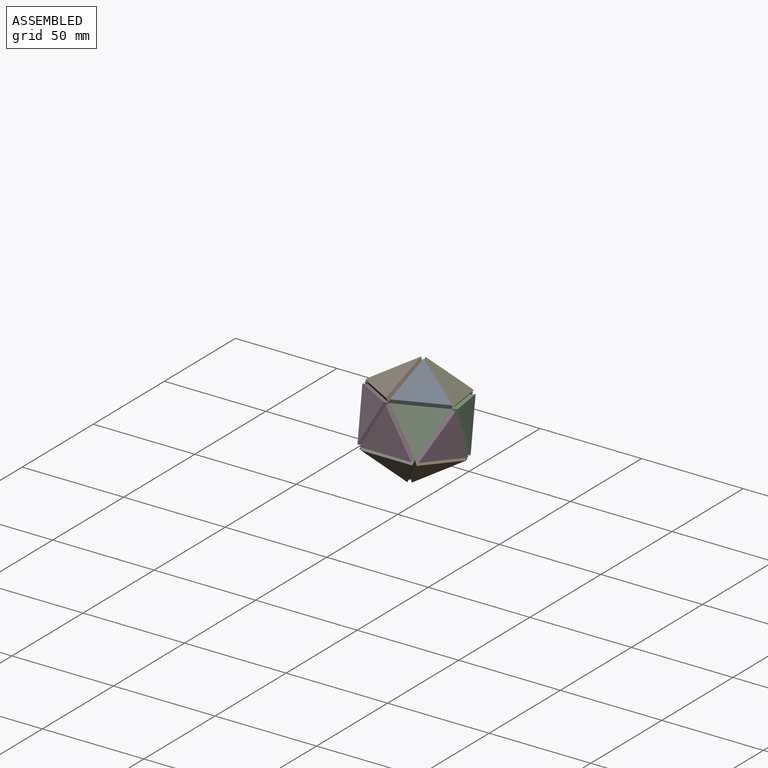
[diagram: assembled view]
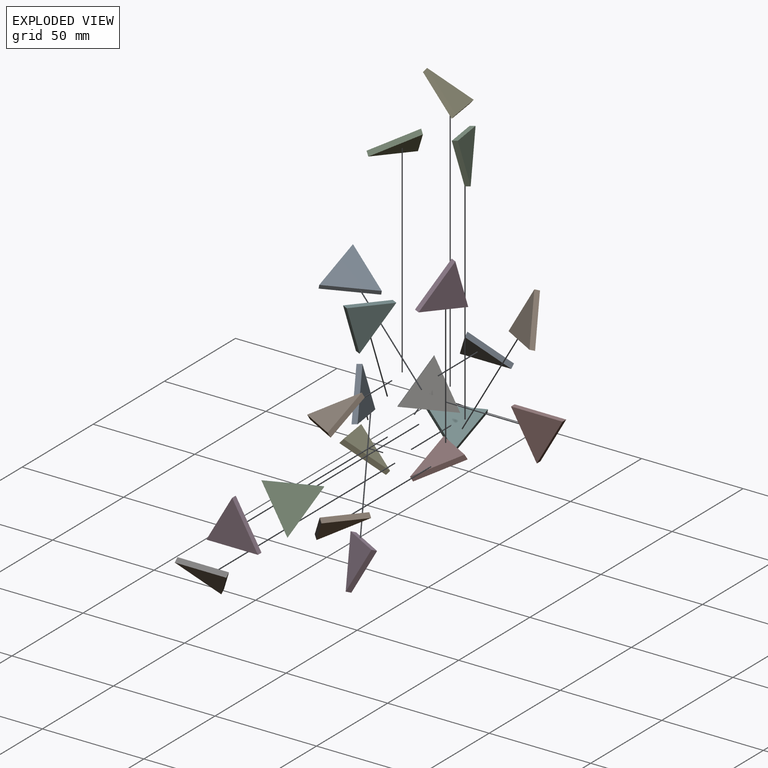
[diagram: exploded view]
GUIDED TOUR — MATED ASSEMBLY (Onshape document 5a3bdc6a93e0232d005b68b0, AutoMate assembly 5a3bdc6a93e0232d005b68b0_2b4b5005f49a1a6e390c9689_13e35d1d4d977de1ab7f0372_default)

This assembly has 20 components, labeled P0..P19 below (a component is one placed occurrence of a part; the same part can appear more than once), held together by 27 mates. A mate is a constraint between two components; its type names the relative motion it leaves free:
  CYLINDRICAL — leaves both rotation about and translation along the listed axis free,
  REVOLUTE — leaves rotation about the listed axis free (a hinge).
Axis/direction vectors are unit vectors and 'through' points are millimeter coordinates, both in the assembly's world frame.

MATES
  1. CYLINDRICAL "Cylindrical 2": P13 <-> P7, axis (0.000, 0.934, 0.357) through (5.86, -9.33, -14.89) mm
  2. REVOLUTE "Revolute 2": P14 <-> P5, axis (-0.309, -0.577, -0.756) through (-10.77, -4.79, 2.04) mm
  3. REVOLUTE "Revolute 10": P8 <-> P10, axis (0.809, 0.577, -0.110) through (16.13, -28.52, 17.57) mm
  4. REVOLUTE "Revolute 10": P9 <-> P2, axis (-0.809, -0.357, -0.467) through (-4.42, -16.66, 22.10) mm
  5. CYLINDRICAL "Cylindrical 6": P0 <-> P12, axis (-0.309, 0.934, -0.178) through (-10.77, -23.99, -5.29) mm
  6. REVOLUTE "Revolute 8": P2 <-> P16, axis (-0.500, 0.577, -0.645) through (-0.49, -4.79, 19.84) mm
  7. CYLINDRICAL "Cylindrical 5": P7 <-> P17, axis (-0.809, 0.577, -0.110) through (16.13, -4.79, -8.96) mm
  8. REVOLUTE "Revolute 3": P12 <-> P6, axis (-0.500, -0.577, 0.645) through (-0.49, -28.52, -11.22) mm
  9. REVOLUTE "Revolute 8": P10 <-> P3, axis (0.500, 0.000, -0.866) through (12.21, -35.85, 7.97) mm
  10. CYLINDRICAL "Cylindrical 4": P4 <-> P8, axis (0.809, -0.357, -0.467) through (16.13, -16.66, 22.10) mm
  11. CYLINDRICAL "Cylindrical 1": P18 <-> P17, axis (0.309, -0.577, -0.756) through (22.48, -4.79, 2.04) mm
  12. REVOLUTE "Revolute 7": P15 <-> P16, axis (1.000, 0.000, 0.000) through (5.86, 2.54, 11.64) mm
  13. CYLINDRICAL "Cylindrical 3": P18 <-> P4, axis (-0.309, 0.934, -0.178) through (22.48, -9.33, 13.91) mm
  14. REVOLUTE "Revolute 9": P4 <-> P16, axis (-0.500, -0.577, 0.645) through (12.21, -4.79, 19.84) mm
  15. CYLINDRICAL "Cylindrical 7": P0 <-> P11, axis (0.309, -0.577, -0.756) through (-10.77, -28.52, 6.57) mm
  16. REVOLUTE "Revolute 1": P15 <-> P14, axis (-0.500, 0.000, 0.866) through (-0.49, 2.54, 0.64) mm
  17. REVOLUTE "Revolute 7": P6 <-> P3, axis (-1.000, 0.000, 0.000) through (5.86, -35.85, -3.02) mm
  18. REVOLUTE "Revolute 5": P2 <-> P5, axis (-0.309, -0.934, 0.178) through (-10.77, -9.33, 13.91) mm
  19. REVOLUTE "Revolute 1": P6 <-> P1, axis (0.500, -0.577, 0.645) through (12.21, -28.52, -11.22) mm
  20. REVOLUTE "Revolute 4": P7 <-> P1, axis (0.809, 0.357, 0.467) through (16.13, -16.66, -13.49) mm
  21. REVOLUTE "Revolute 6": P18 <-> P19, axis (0.000, -0.357, 0.934) through (26.40, -16.66, 4.31) mm
  22. REVOLUTE "Revolute 4": P13 <-> P14, axis (-0.809, -0.577, 0.110) through (-4.42, -4.79, -8.96) mm
  23. REVOLUTE "Revolute 6": P0 <-> P5, axis (0.000, -0.357, 0.934) through (-14.69, -16.66, 4.31) mm
  24. REVOLUTE "Revolute 3": P17 <-> P15, axis (0.500, 0.000, 0.866) through (12.21, 2.54, 0.64) mm
  25. REVOLUTE "Revolute 2": P1 <-> P19, axis (0.309, 0.934, -0.178) through (22.48, -23.99, -5.29) mm
  26. REVOLUTE "Revolute 5": P10 <-> P19, axis (0.309, 0.577, 0.756) through (22.48, -28.52, 6.57) mm
  27. REVOLUTE "Revolute 9": P11 <-> P3, axis (0.500, 0.000, 0.866) through (-0.49, -35.85, 7.97) mm

ASSEMBLY ORDER
  1. P7 — the base component [order verified]
  2. P1 [order verified]
  3. P13 [order verified]
  4. P12 [order verified]
  5. P0 [order verified]
  6. P18 [order verified]
  7. P15 [order verified]
  8. P17 [order verified]
  9. P5 [order verified]
  10. P14 [order verified]
  11. P19 [order verified]
  12. P4 [order verified]
  13. P8 [order verified]
  14. P2 [order verified]
  15. P9 [order verified]
  16. P16 [order verified]
  17. P6 [order verified]
  18. P10 [order verified]
  19. P11 [order verified]
  20. P3 [order verified]
Order-tag legend:
  [order verified] — this step's position reverses a verified removal order: the component was checked to insert without passing through the ones already placed.

Of the 20 components, 20 carry the full construction recipe — the FeatureScript program that regenerates the part's solid from scratch; the rest are supplied as boundary geometry only.
Because this assembly has more than 12 components, the tour below covers the 12 most significant ones individually (every recipe-attached component first, then the largest by part volume), in assembly order; the remaining 8 are summarized together in a grouped section at the end.
Each toured component is shown spotlighted twice — in the assembled view, then in the exploded view, where a leader line traces a displaced component back to its assembled socket (saturated green if recipe-attached, orange if geometry-only; every other component desaturated gray) — followed by its recipe or geometry summary and the mates that hold it.
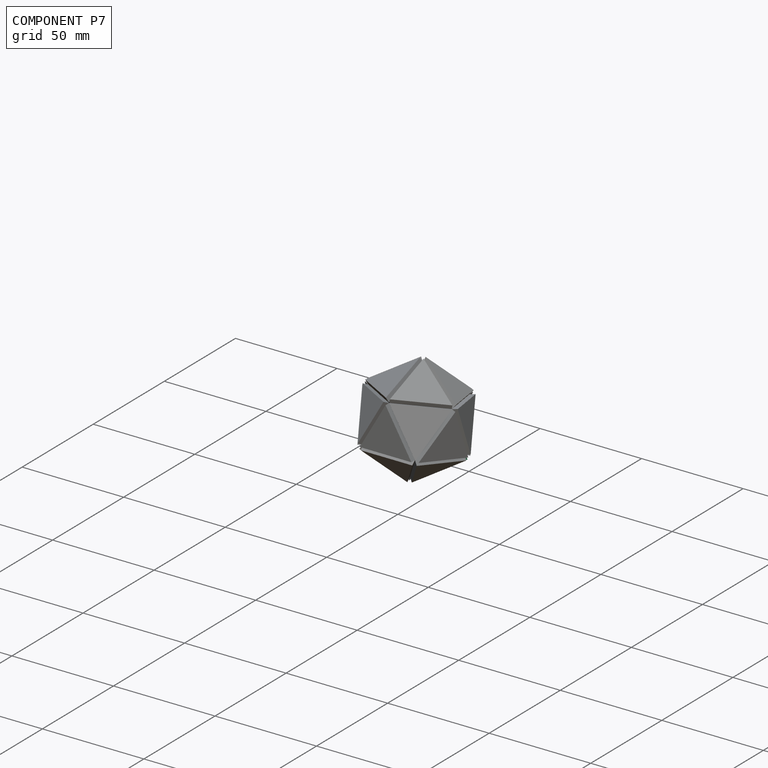
[diagram: component P7 — assembled]
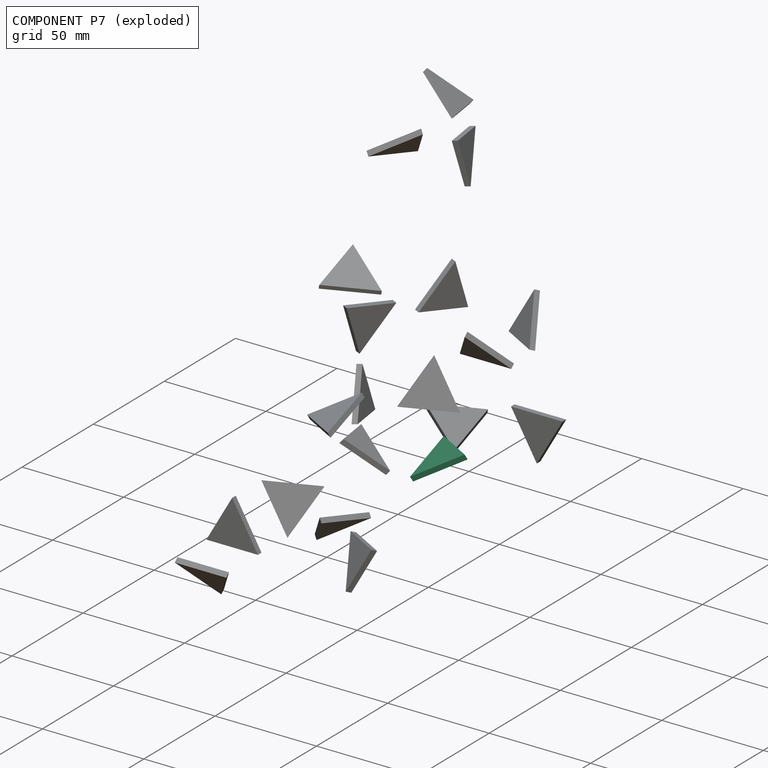
[diagram: component P7 — exploded]
COMPONENT P7 — same part as P0 (CADFS 00192088); its construction recipe is shown at P0.
Held by: CYLINDRICAL mate "Cylindrical 2" to P13; CYLINDRICAL mate "Cylindrical 5" to P17; REVOLUTE mate "Revolute 4" to P1.
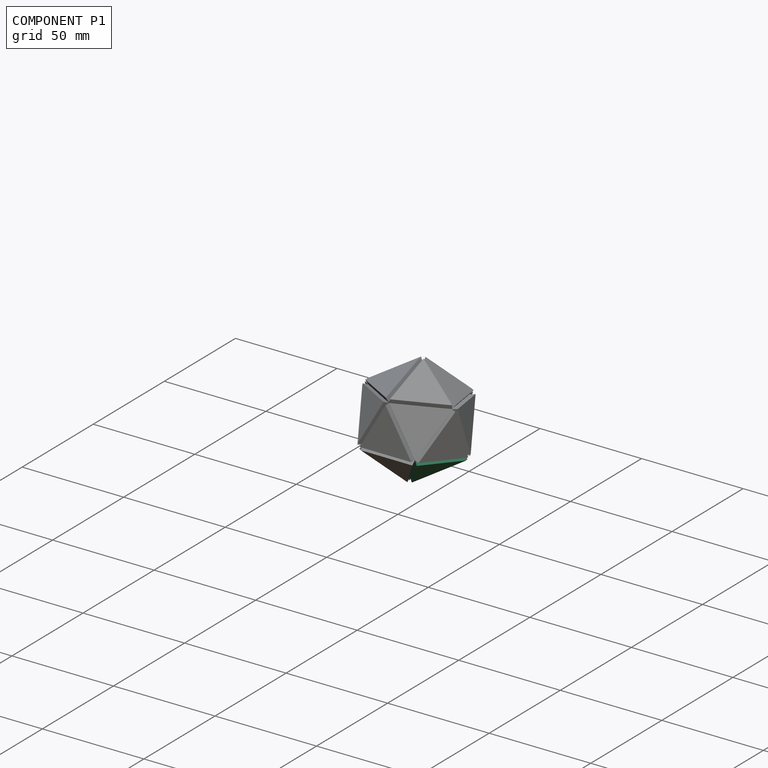
[diagram: component P1 — assembled]
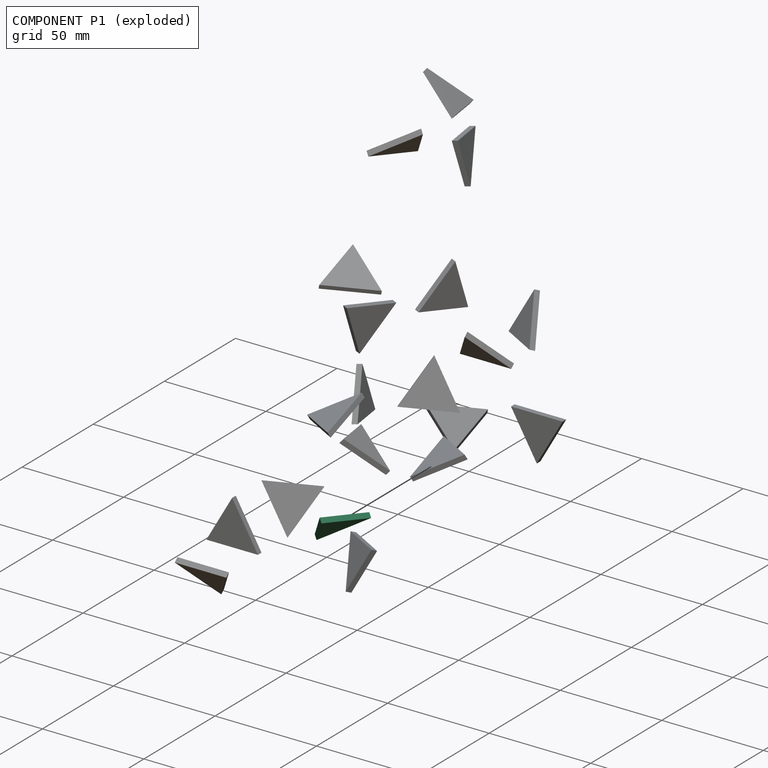
[diagram: component P1 — exploded]
COMPONENT P1 — same part as P0 (CADFS 00192088); its construction recipe is shown at P0.
Held by: REVOLUTE mate "Revolute 1" to P6; REVOLUTE mate "Revolute 4" to P7; REVOLUTE mate "Revolute 2" to P19.
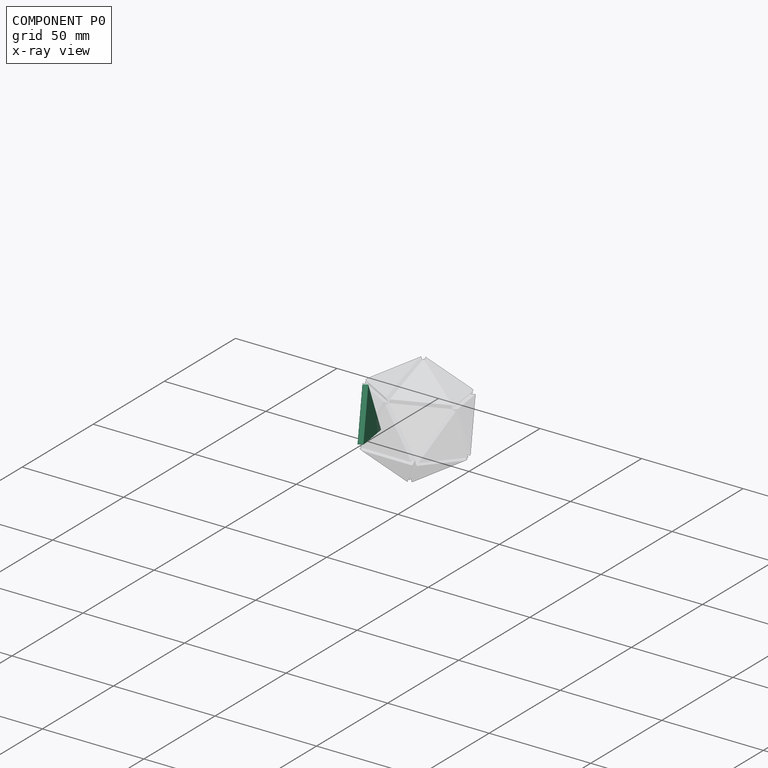
[diagram: component P0 — x-ray view]
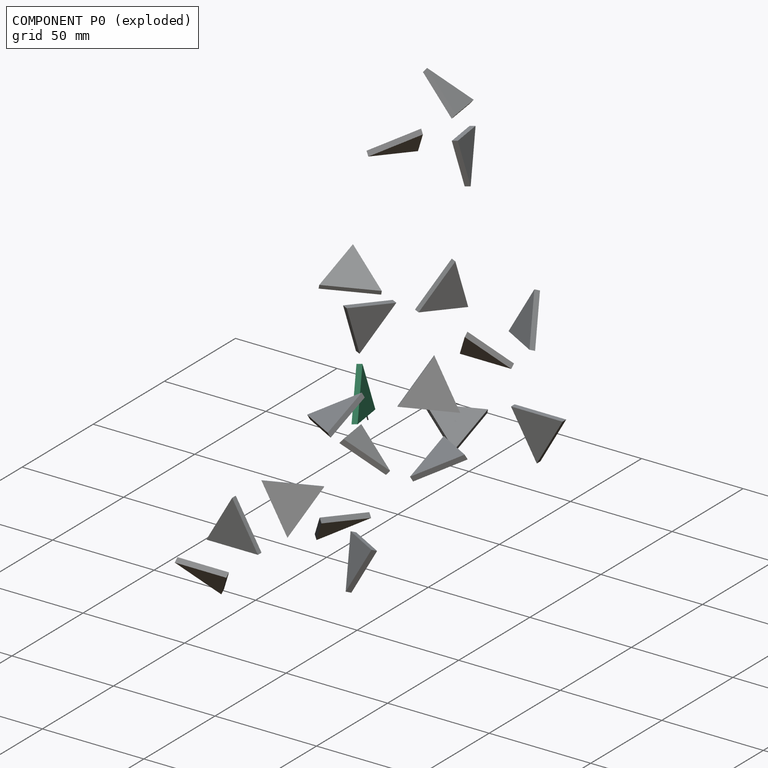
[diagram: component P0 — exploded]
COMPONENT P0 — recipe-attached (CADFS 00192088, mesh-verified: the recipe's output STEP matches this component's geometry to below the mesh-comparison resolution (tessellation chordal tolerance ~0.0505 mm)).
Held by: CYLINDRICAL mate "Cylindrical 6" to P12; CYLINDRICAL mate "Cylindrical 7" to P11; REVOLUTE mate "Revolute 6" to P5.
Construction recipe (FeatureScript — the CAD program that rebuilds this solid; sketch coordinates are in the units given by the * unit suffixes, e.g. mm):

FeatureScript 2522;
import(path : "onshape/std/geometry.fs", version : "2522.0");
import(path : "onshape/std/common.fs", version : "2522.0");
const mm = millimeter;
const VERTEX = EntityType.VERTEX;
const EDGE = EntityType.EDGE;
const FACE = EntityType.FACE;
const BODY = EntityType.BODY;
function v(x, y){return vector(x, y);}
function OD(order){return orderDisambiguation(order);}
function OSD(set){return originalSetDisambiguation(set);}
function TD(topology){return topologyDisambiguation(topology);}
function TDD(query){return trueDependencyDisambiguation(query);}
function sQuery(a, b, c) {return sketchEntityQuery(a, b, c);}

annotation { "Feature Type Name" : "Feature", "Feature Type Description" : "" }
export const myFeature = defineFeature(function(context is Context, id is Id, definition is map)
    precondition{}
    {
        {
            var Q0;
            Q0=qCreatedBy(makeId("Front.planeOp"),FACE);
            var sketch = newSketch(context, id + "F0", { "sketchPlane" : qUnion([Q0])});
            skCircle(sketch, "E0.cCircle", {"center": v(0, 0) * mm, "radius": 7.33 * mm, "construction": true});
            skLineSegment(sketch, "E0.0", {"start": v(-12.7, 7.33) * mm, "end": v(12.7, 7.33) * mm});
            skLineSegment(sketch, "E0.1", {"start": v(12.7, 7.33) * mm, "end": v(0, -14.66) * mm});
            skLineSegment(sketch, "E0.2", {"start": v(0, -14.66) * mm, "end": v(-12.7, 7.33) * mm});
            skPoint(sketch, "E0.0.midPoint", {"position": v(0, 7.33) * mm});
            skLineSegment(sketch, "E1", {"start": v(0, 7.33) * mm, "end": v(-6.35, -3.67) * mm});
            skLineSegment(sketch, "E2", {"start": v(-6.35, -3.67) * mm, "end": v(6.35, -3.67) * mm});
            skLineSegment(sketch, "E3", {"start": v(6.35, -3.67) * mm, "end": v(0, 7.33) * mm});
            skSolve(sketch);
        }
        {
            var Q0;
            {var subQ3=sQuery(id+"F0.wireOp",EDGE,"E3");Q0=makeQuery(id+"F0.imprint","IMPRINT",FACE,{"disambiguationData":[TD([[makeQuery(id+"F0.imprint","IMPRINT",EDGE,{"derivedFrom":subQ3}),-1.0]])]});}
            var Q1;
            {var subQ3=sQuery(id+"F0.wireOp",EDGE,"E2");Q1=makeQuery(id+"F0.imprint","IMPRINT",FACE,{"disambiguationData":[TD([[makeQuery(id+"F0.imprint","IMPRINT",EDGE,{"derivedFrom":subQ3}),-1.0]])]});}
            var Q2;
            {var subQ3=sQuery(id+"F0.wireOp",EDGE,"E1");Q2=makeQuery(id+"F0.imprint","IMPRINT",FACE,{"disambiguationData":[TD([[makeQuery(id+"F0.imprint","IMPRINT",EDGE,{"derivedFrom":subQ3}),-1.0]])]});}
            var Q3;
            Q3=makeQuery(id+"F0.imprint","IMPRINT",FACE,{"disambiguationData":[TD([[makeQuery(id+"F0.imprint","IMPRINT",EDGE,{"derivedFrom":sQuery(id+"F0.wireOp",EDGE,"E1")}),1.0]])]});
            extrude(context, id + "F1", {"entities" : qUnion([Q0, Q1, Q2, Q3]), "depth" : 2.54 * mm});
        }
    });
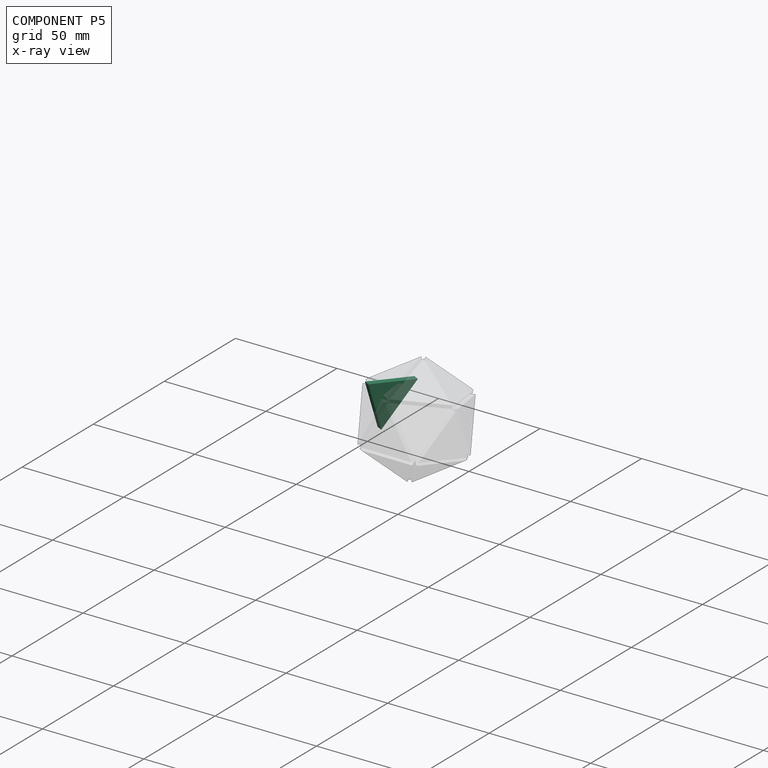
[diagram: component P5 — x-ray view]
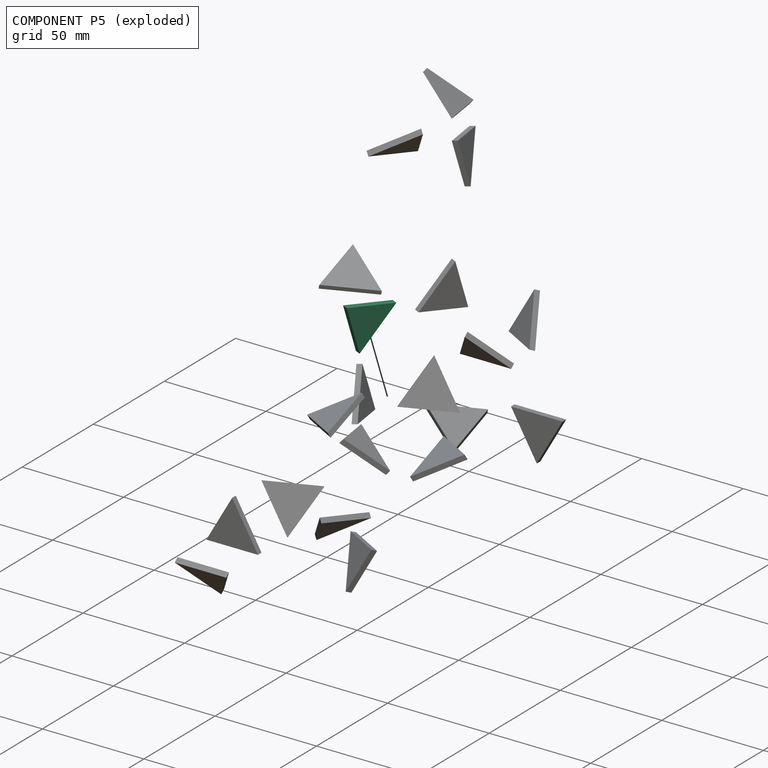
[diagram: component P5 — exploded]
COMPONENT P5 — same part as P0 (CADFS 00192088); its construction recipe is shown at P0.
Held by: REVOLUTE mate "Revolute 2" to P14; REVOLUTE mate "Revolute 5" to P2; REVOLUTE mate "Revolute 6" to P0.
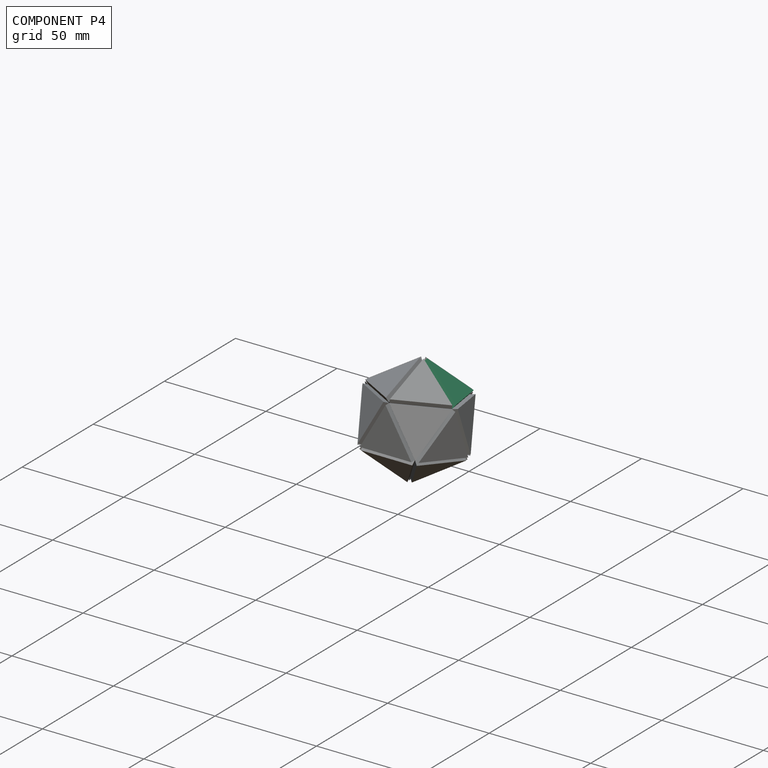
[diagram: component P4 — assembled]
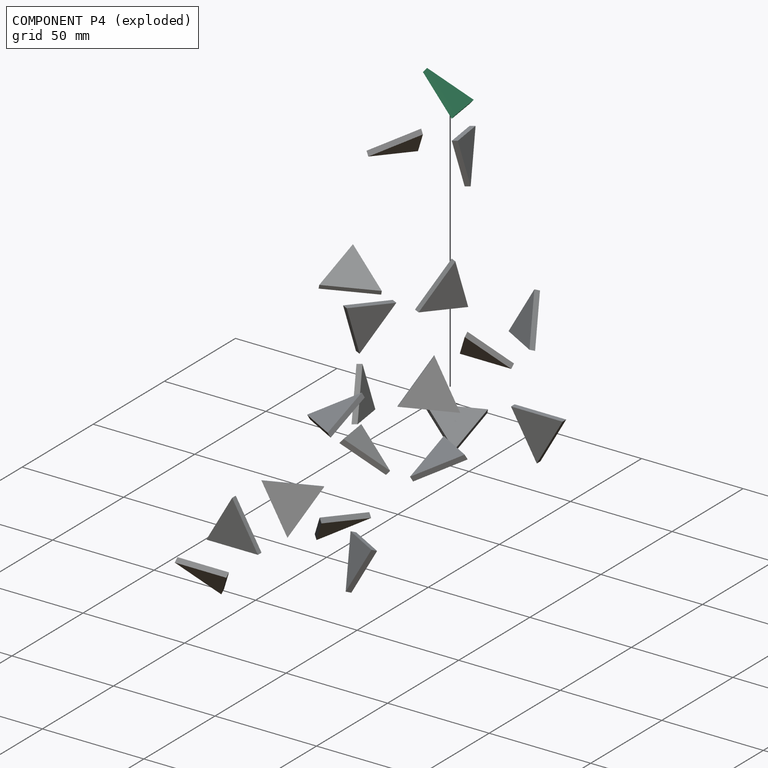
[diagram: component P4 — exploded]
COMPONENT P4 — same part as P0 (CADFS 00192088); its construction recipe is shown at P0.
Held by: CYLINDRICAL mate "Cylindrical 4" to P8; CYLINDRICAL mate "Cylindrical 3" to P18; REVOLUTE mate "Revolute 9" to P16.
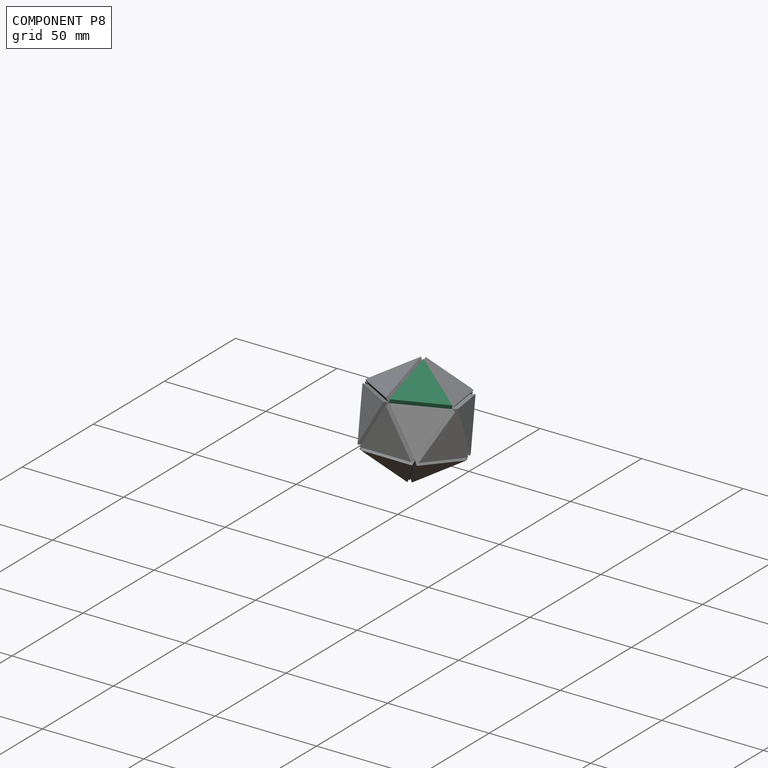
[diagram: component P8 — assembled]
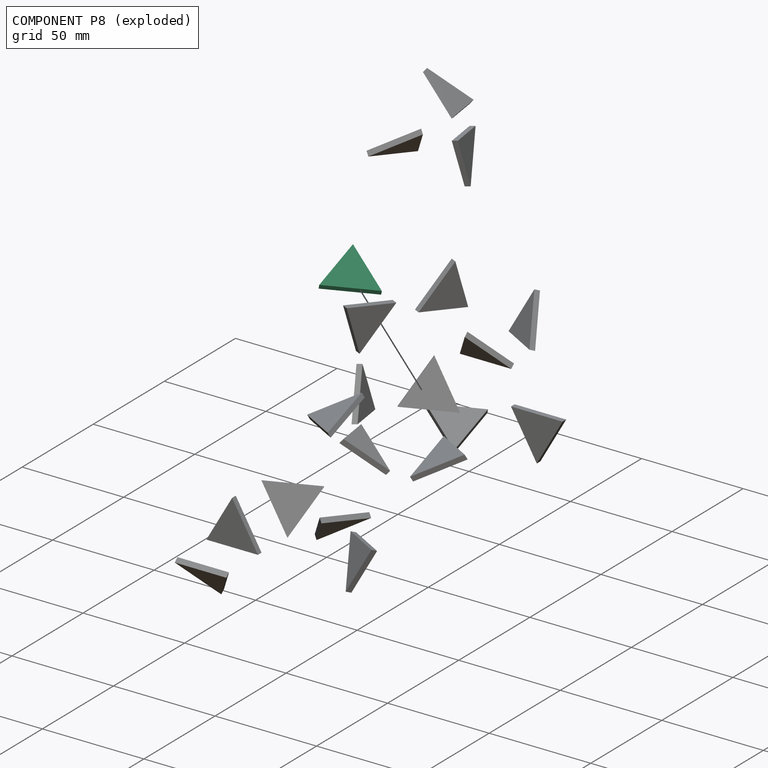
[diagram: component P8 — exploded]
COMPONENT P8 — same part as P0 (CADFS 00192088); its construction recipe is shown at P0.
Held by: REVOLUTE mate "Revolute 10" to P10; CYLINDRICAL mate "Cylindrical 4" to P4.
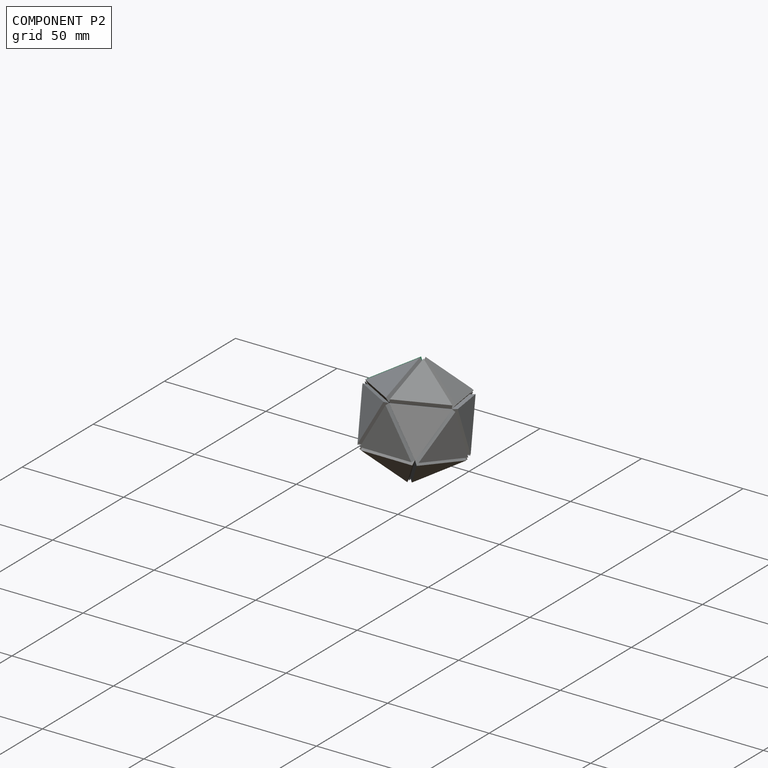
[diagram: component P2 — assembled]
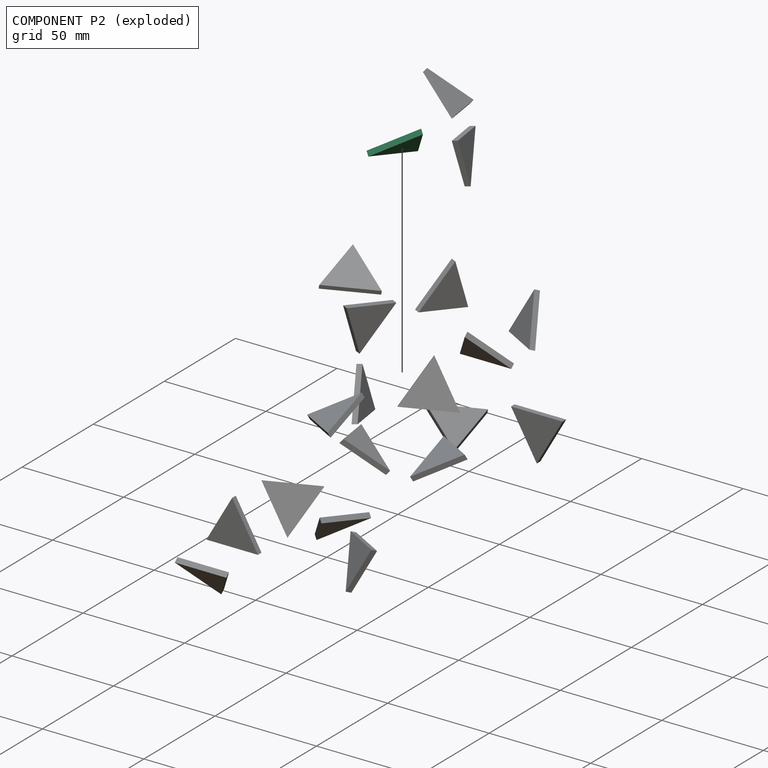
[diagram: component P2 — exploded]
COMPONENT P2 — same part as P0 (CADFS 00192088); its construction recipe is shown at P0.
Held by: REVOLUTE mate "Revolute 10" to P9; REVOLUTE mate "Revolute 8" to P16; REVOLUTE mate "Revolute 5" to P5.
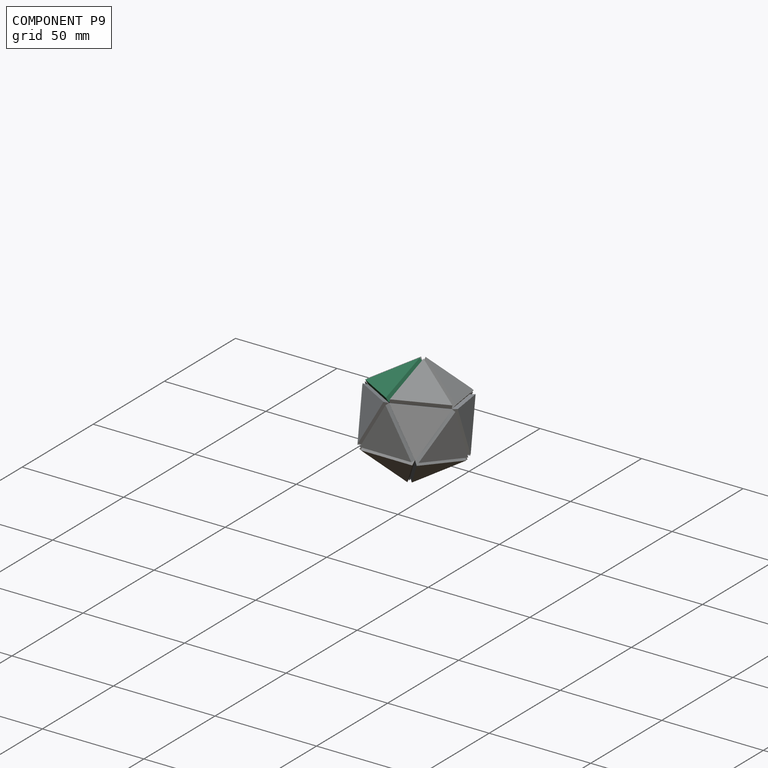
[diagram: component P9 — assembled]
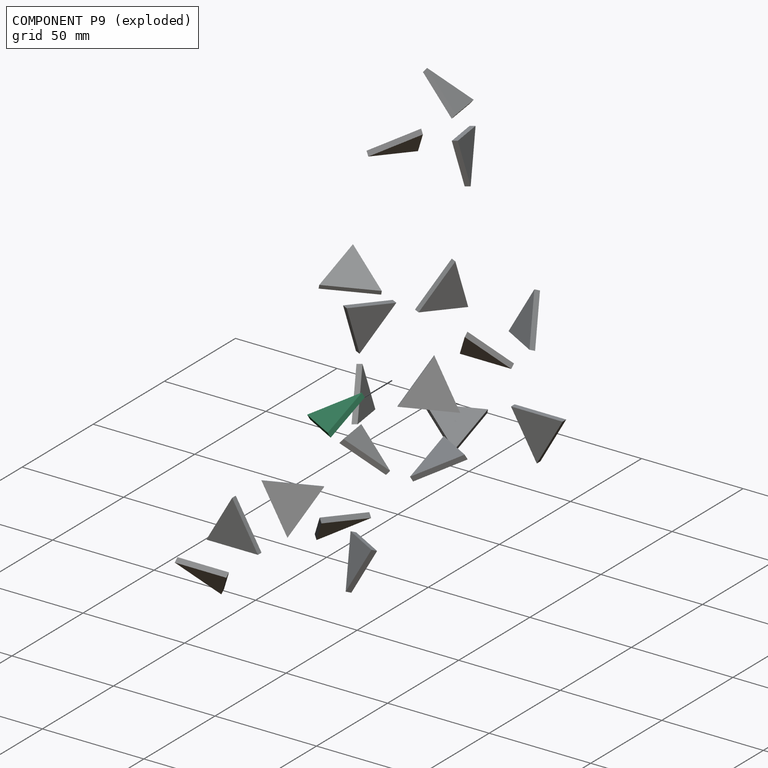
[diagram: component P9 — exploded]
COMPONENT P9 — same part as P0 (CADFS 00192088); its construction recipe is shown at P0.
Held by: REVOLUTE mate "Revolute 10" to P2.
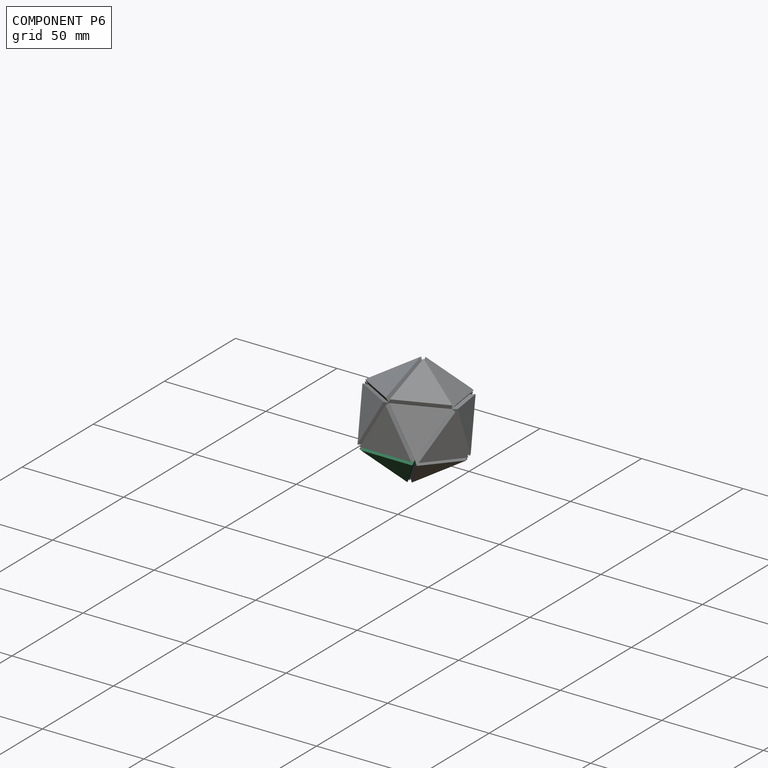
[diagram: component P6 — assembled]
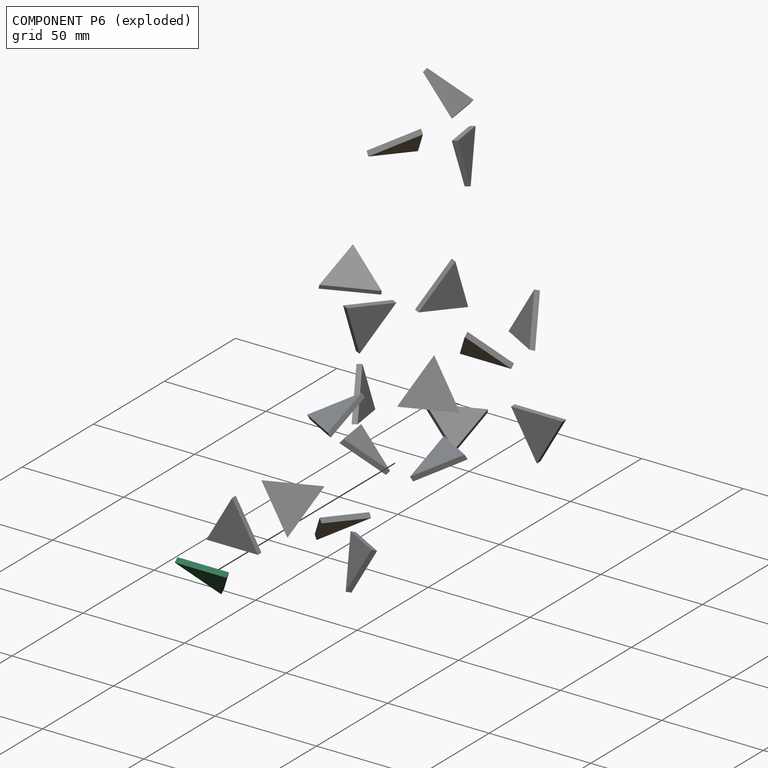
[diagram: component P6 — exploded]
COMPONENT P6 — same part as P0 (CADFS 00192088); its construction recipe is shown at P0.
Held by: REVOLUTE mate "Revolute 3" to P12; REVOLUTE mate "Revolute 7" to P3; REVOLUTE mate "Revolute 1" to P1.
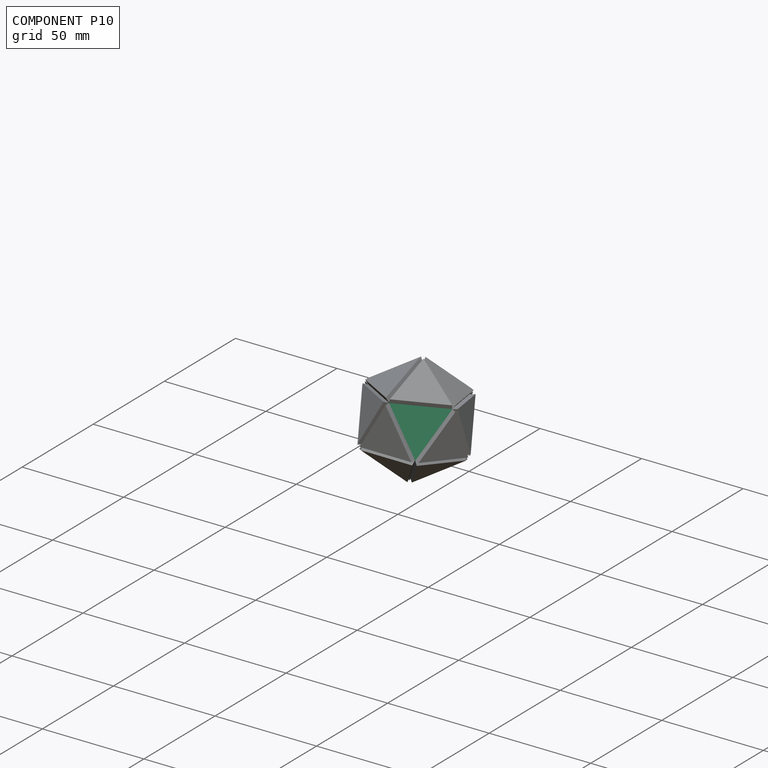
[diagram: component P10 — assembled]
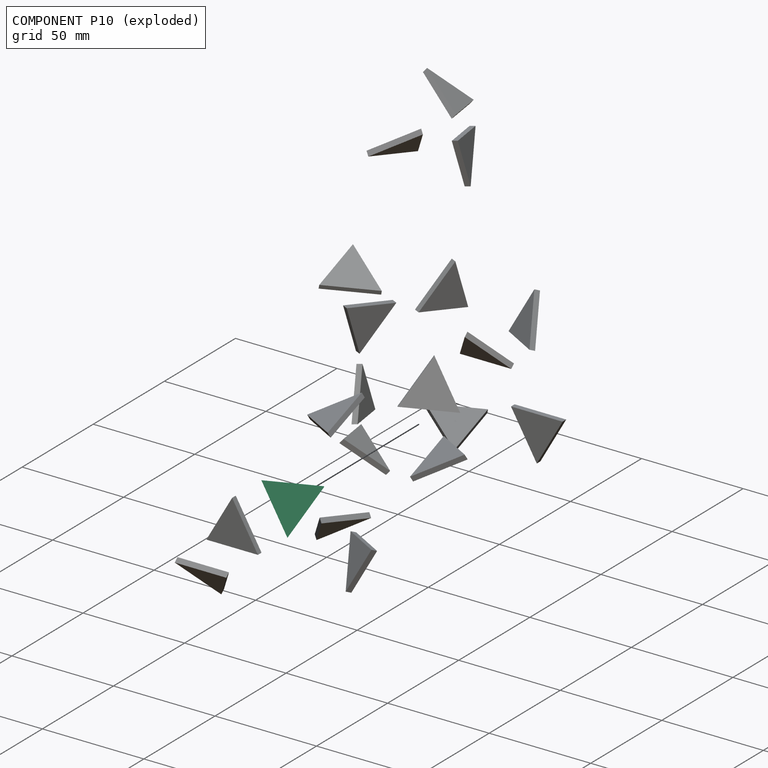
[diagram: component P10 — exploded]
COMPONENT P10 — same part as P0 (CADFS 00192088); its construction recipe is shown at P0.
Held by: REVOLUTE mate "Revolute 10" to P8; REVOLUTE mate "Revolute 8" to P3; REVOLUTE mate "Revolute 5" to P19.
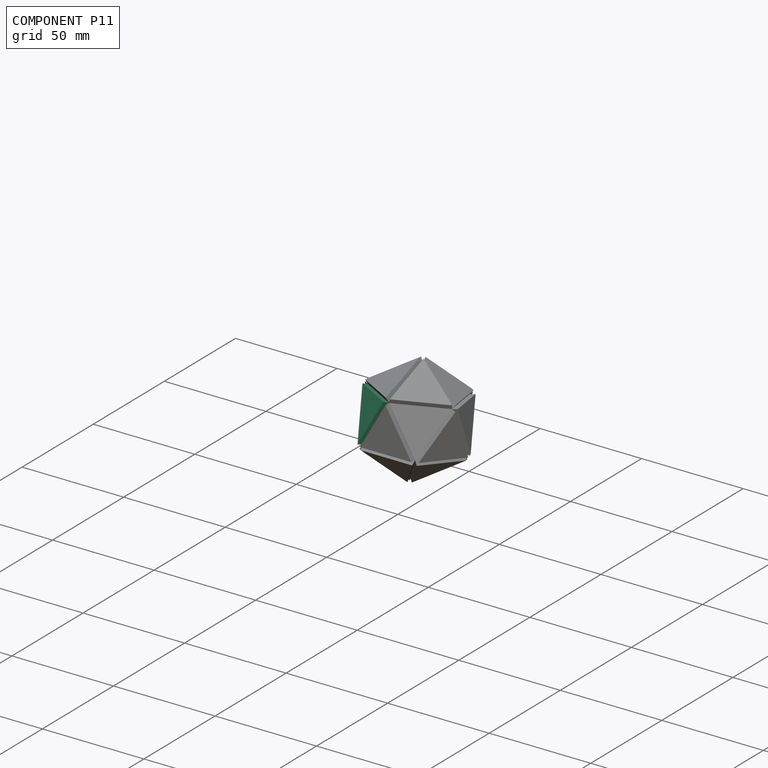
[diagram: component P11 — assembled]
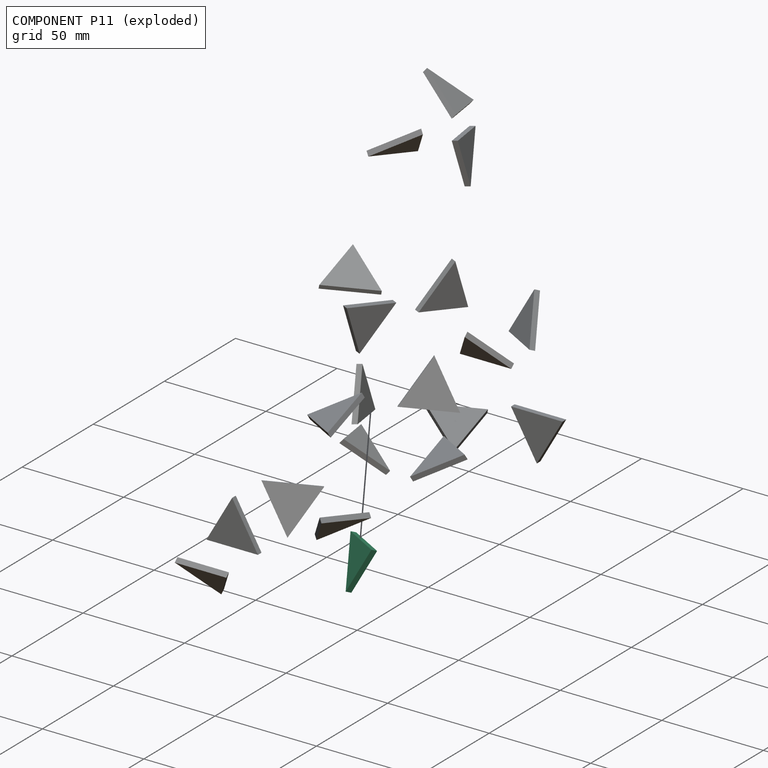
[diagram: component P11 — exploded]
COMPONENT P11 — same part as P0 (CADFS 00192088); its construction recipe is shown at P0.
Held by: CYLINDRICAL mate "Cylindrical 7" to P0; REVOLUTE mate "Revolute 9" to P3.
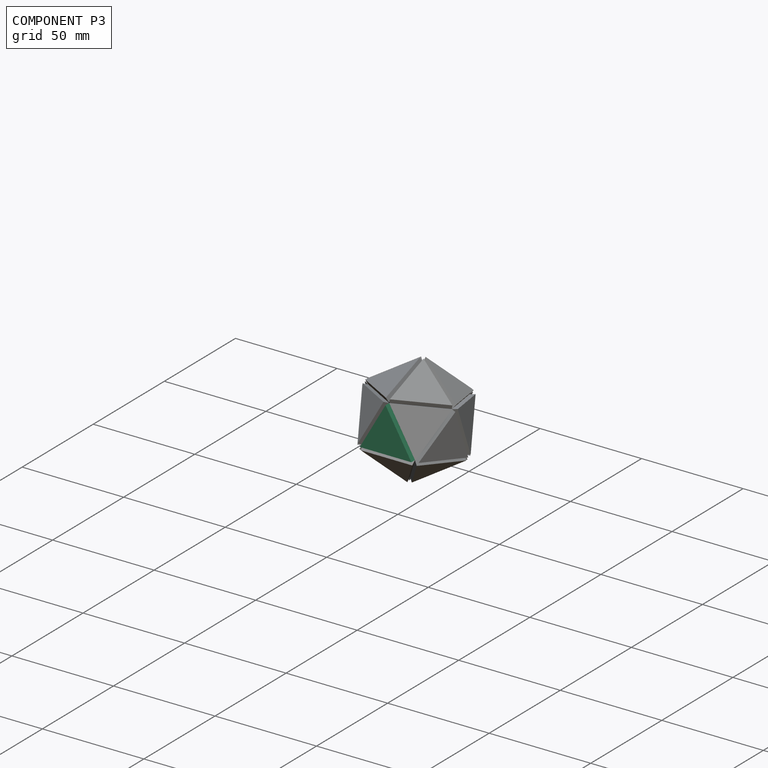
[diagram: component P3 — assembled]
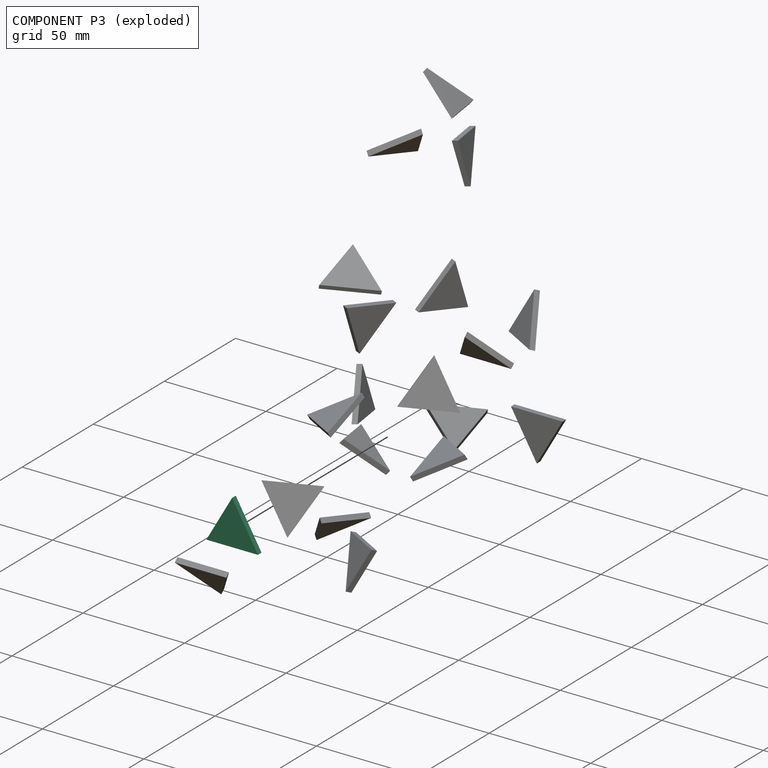
[diagram: component P3 — exploded]
COMPONENT P3 — same part as P0 (CADFS 00192088); its construction recipe is shown at P0.
Held by: REVOLUTE mate "Revolute 8" to P10; REVOLUTE mate "Revolute 7" to P6; REVOLUTE mate "Revolute 9" to P11.
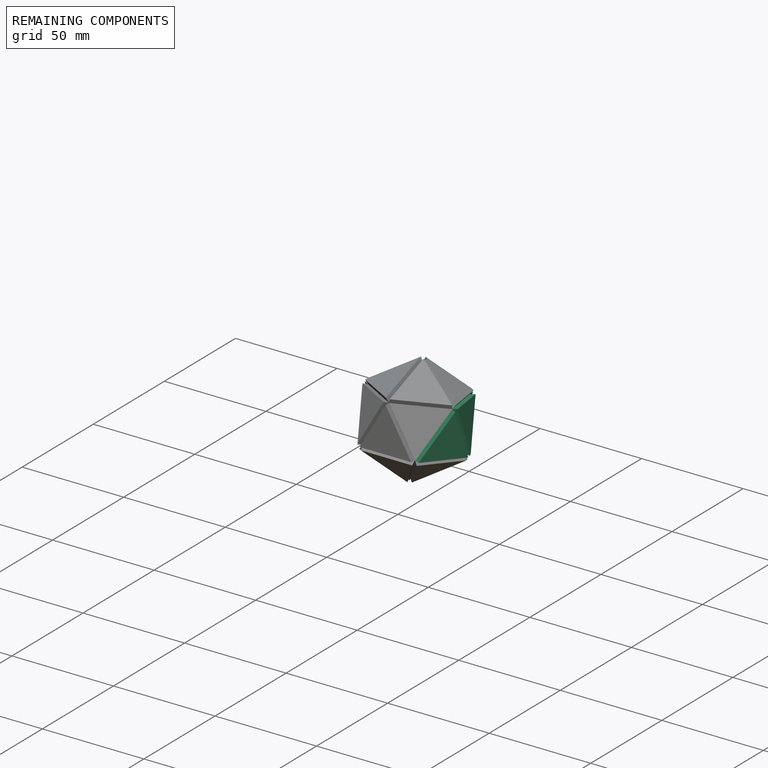
[diagram: remaining components — assembled]
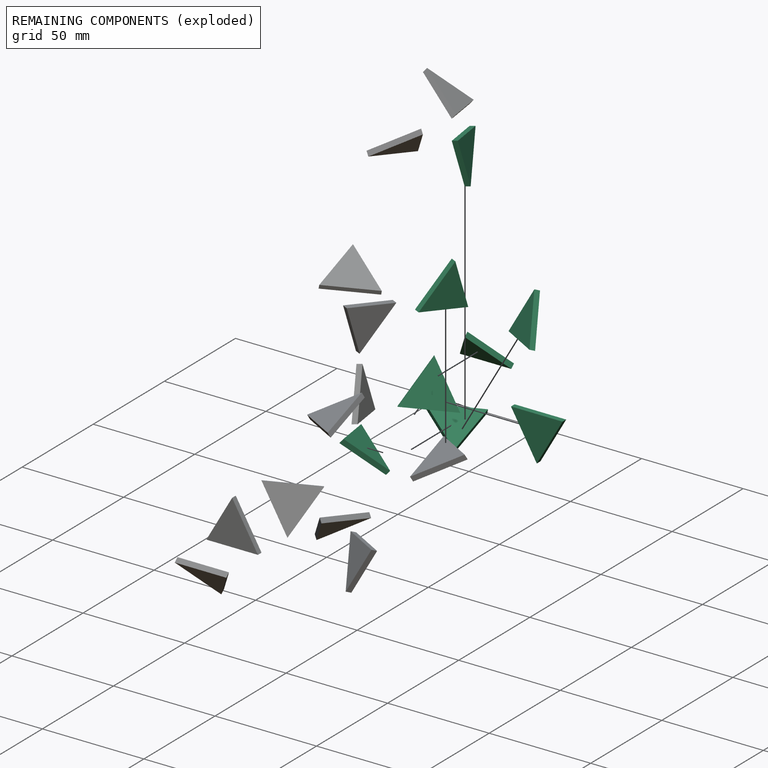
[diagram: remaining components — exploded]
REMAINING COMPONENTS (grouped) — the 8 components below fall outside the per-component tour by the significance rule stated above; both spotlight views highlight the whole group.
  P13: bounding box 25.4 x 22.0 x 2.5 mm, volume 710 mm^3. Recipe-attached (CADFS 00192088; recipe not printed under the significance rule). Held by: CYLINDRICAL mate "Cylindrical 2" to P7; REVOLUTE mate "Revolute 4" to P14.
  P12: bounding box 25.4 x 22.0 x 2.5 mm, volume 710 mm^3. Recipe-attached (CADFS 00192088; recipe not printed under the significance rule). Held by: CYLINDRICAL mate "Cylindrical 6" to P0; REVOLUTE mate "Revolute 3" to P6.
  P18: bounding box 25.4 x 22.0 x 2.5 mm, volume 710 mm^3. Recipe-attached (CADFS 00192088; recipe not printed under the significance rule). Held by: CYLINDRICAL mate "Cylindrical 1" to P17; CYLINDRICAL mate "Cylindrical 3" to P4; REVOLUTE mate "Revolute 6" to P19.
  P15: bounding box 25.4 x 22.0 x 2.5 mm, volume 710 mm^3. Recipe-attached (CADFS 00192088; recipe not printed under the significance rule). Held by: REVOLUTE mate "Revolute 7" to P16; REVOLUTE mate "Revolute 1" to P14; REVOLUTE mate "Revolute 3" to P17.
  P17: bounding box 25.4 x 22.0 x 2.5 mm, volume 710 mm^3. Recipe-attached (CADFS 00192088; recipe not printed under the significance rule). Held by: CYLINDRICAL mate "Cylindrical 5" to P7; CYLINDRICAL mate "Cylindrical 1" to P18; REVOLUTE mate "Revolute 3" to P15.
  P14: bounding box 25.4 x 22.0 x 2.5 mm, volume 710 mm^3. Recipe-attached (CADFS 00192088; recipe not printed under the significance rule). Held by: REVOLUTE mate "Revolute 2" to P5; REVOLUTE mate "Revolute 1" to P15; REVOLUTE mate "Revolute 4" to P13.
  P19: bounding box 25.4 x 22.0 x 2.5 mm, volume 710 mm^3. Recipe-attached (CADFS 00192088; recipe not printed under the significance rule). Held by: REVOLUTE mate "Revolute 6" to P18; REVOLUTE mate "Revolute 2" to P1; REVOLUTE mate "Revolute 5" to P10.
  P16: bounding box 25.4 x 22.0 x 2.5 mm, volume 710 mm^3. Recipe-attached (CADFS 00192088; recipe not printed under the significance rule). Held by: REVOLUTE mate "Revolute 8" to P2; REVOLUTE mate "Revolute 7" to P15; REVOLUTE mate "Revolute 9" to P4.
PROVENANCE & LICENSES
Assembly (occurrences, transforms, mates, per-part STEP geometry): AutoMate dataset, Zenodo record 7776208, CC0.
Construction recipes: CADFS (HuggingFace VladPyatov/CADFS, CC-BY-4.0, layered over the ABC dataset), FeatureScript reconstruction programs keyed by ABC model id.
Join: ABC meta listings map ABC model id -> Onshape documentId; within a shared document, parts are matched by geometric signature (bounding-box dims + volume at 0.1% relative tolerance, exact B-rep face/solid counts).
Verification: 20 of this assembly's 20 components carry a recipe attachment, and every attachment is mesh-verified: the CADFS STEP and the AutoMate member STEP were compared as meshes in their shared local frame (symmetric sampled-point-to-mesh distance); worst across the 20 attachments: below the mesh-comparison resolution (tessellation chordal tolerance ~0.0505 mm) on a 34 mm part.
Renders: orthographic iso camera (az 35 / el 25); the floor grid conveys scale (grid pitch printed in each image; no ruler). In the exploded view each component is displaced by its stored offset vector: the offsets alone carry the explosion direction (mate normal/axis signs are not orientation cues and do not encode it), and separation distances are assigned per mate-chain, not proportionally to assembly-order depth.
